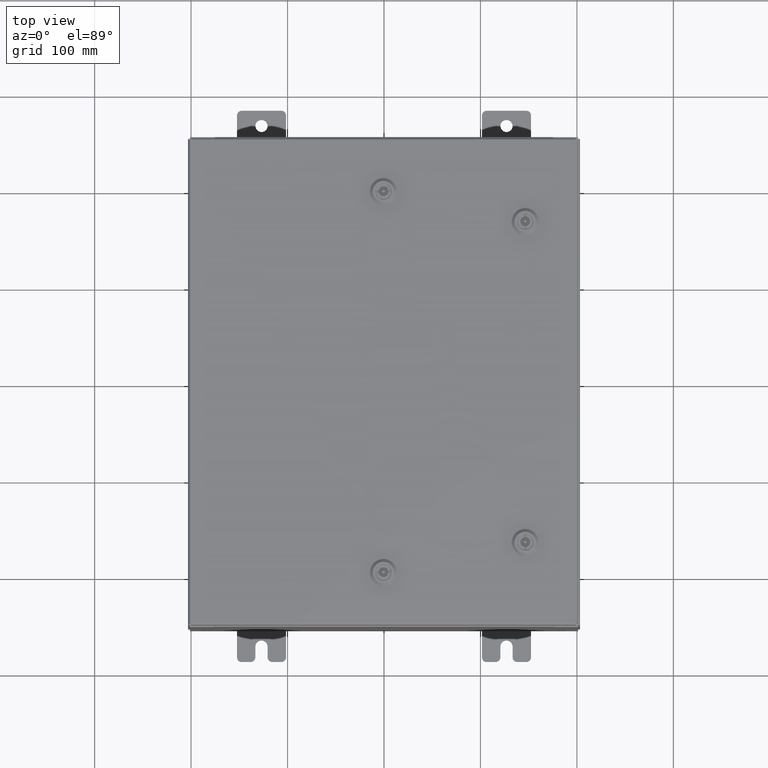
[diagram: clean part render]
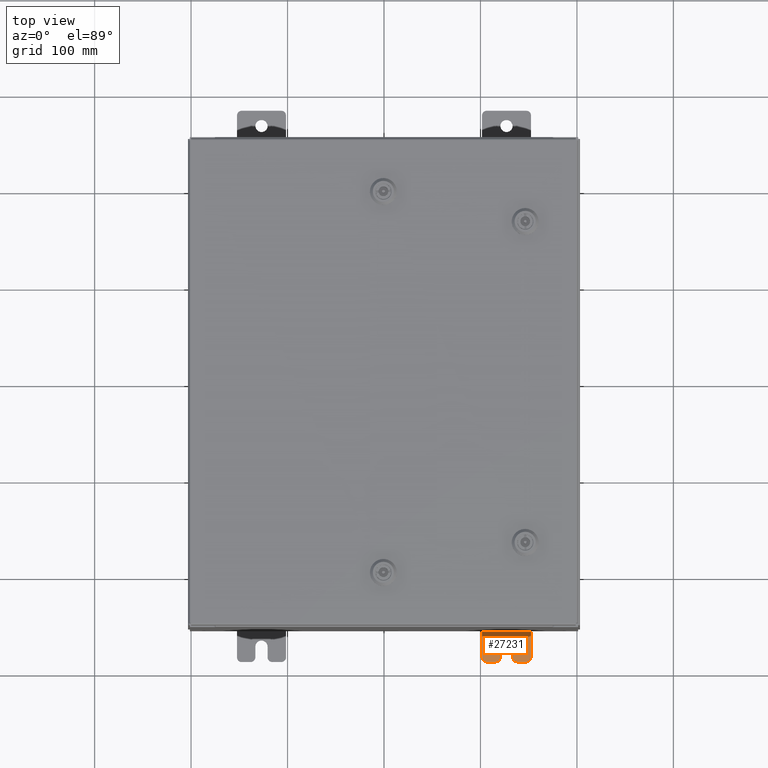
[diagram: same view with one face highlighted and labeled with its STEP entity id]
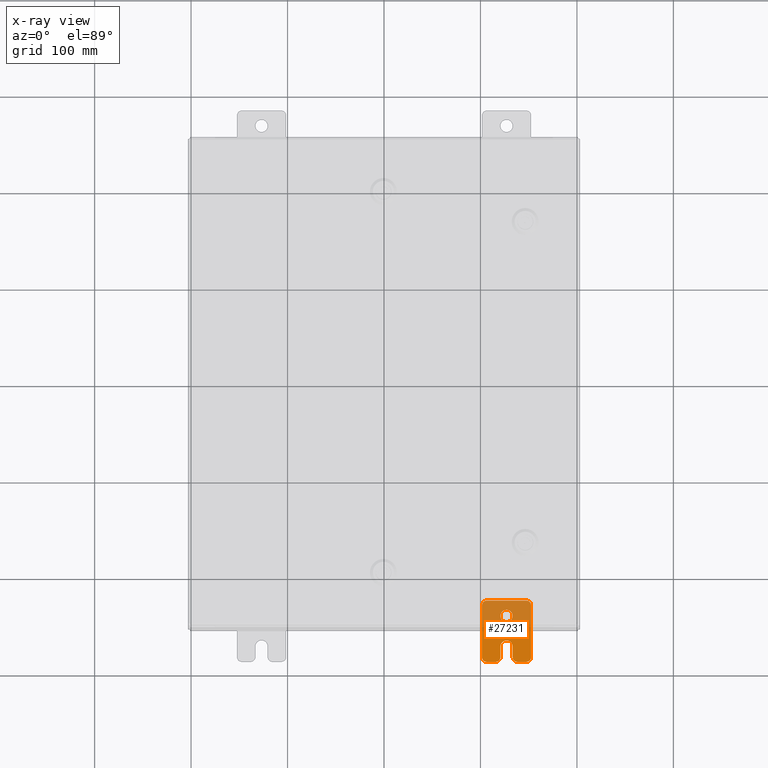
[diagram: x-ray of the same camera — body ghosted, the highlighted face saturated]
A machine part, top view. The second image highlights one B-rep face of the part: STEP entity #27231.
The next image is the same camera in x-ray: the body ghosted, the highlighted face saturated — about 55% of this face is hidden behind the body in this view.
In plain terms, the highlighted planar face has unit normal (0, 0, 1).
Its self-contained STEP definition (entity closure, byte-faithful):
#384 = CARTESIAN_POINT ( 'NONE',  ( 0.0000000000000000000, -1.060000000000001200, 0.9999999999999988900 ) ) ;
#625 = CARTESIAN_POINT ( 'NONE',  ( 0.0000000000000000000, 0.0000000000000000000, 0.0000000000000000000 ) ) ;
#1126 = ORIENTED_EDGE ( 'NONE', *, *, #8228, .T. ) ;
#1266 = AXIS2_PLACEMENT_3D ( 'NONE', #35022, #5863, #39922 ) ;
#2201 = CIRCLE ( 'NONE', #33705, 0.1900000000000011100 ) ;
#2255 = VERTEX_POINT ( 'NONE', #384 ) ;
#2402 = LINE ( 'NONE', #54429, #15344 ) ;
#2616 = DIRECTION ( 'NONE',  ( -6.556435184794182400E-016, -1.000000000000000000, -1.639108796198545600E-016 ) ) ;
#2777 = AXIS2_PLACEMENT_3D ( 'NONE', #19069, #53157, #23963 ) ;
#3264 = DIRECTION ( 'NONE',  ( 0.0000000000000000000, -1.000000000000000000, 1.639108796198558100E-015 ) ) ;
#3372 = FACE_BOUND ( 'NONE', #20690, .T. ) ;
#4446 = CARTESIAN_POINT ( 'NONE',  ( 0.0000000000000000000, 1.059999999999993600, -0.8100000000000089400 ) ) ;
#4700 = CARTESIAN_POINT ( 'NONE',  ( 0.0000000000000000000, 1.059999999999996300, 0.8099999999999938400 ) ) ;
#5696 = EDGE_CURVE ( 'NONE', #16173, #55288, #40114, .T. ) ;
#5863 = DIRECTION ( 'NONE',  ( 1.000000000000000000, -0.0000000000000000000, -5.163192708025532000E-017 ) ) ;
#7045 = AXIS2_PLACEMENT_3D ( 'NONE', #54273, #25069, #59162 ) ;
#7754 = LINE ( 'NONE', #56709, #20694 ) ;
#7778 = CIRCLE ( 'NONE', #7045, 0.2499999999999999200 ) ;
#8008 = EDGE_CURVE ( 'NONE', #8135, #50657, #26803, .T. ) ;
#8135 = VERTEX_POINT ( 'NONE', #39093 ) ;
#8228 = EDGE_CURVE ( 'NONE', #53855, #35488, #43566, .T. ) ;
#8330 = VECTOR ( 'NONE', #57812, 39.37007874015748100 ) ;
#8520 = DIRECTION ( 'NONE',  ( 0.0000000000000000000, 1.000000000000000000, -1.639108796198558100E-015 ) ) ;
#9340 = DIRECTION ( 'NONE',  ( 0.0000000000000000000, 0.0000000000000000000, -1.000000000000000000 ) ) ;
#9591 = DIRECTION ( 'NONE',  ( 0.0000000000000000000, 0.0000000000000000000, -1.000000000000000000 ) ) ;
#10343 = ORIENTED_EDGE ( 'NONE', *, *, #13503, .T. ) ;
#10406 = DIRECTION ( 'NONE',  ( -0.0000000000000000000, 0.0000000000000000000, -1.000000000000000000 ) ) ;
#10556 = CARTESIAN_POINT ( 'NONE',  ( 0.0000000000000000000, -1.250000000000002200, 0.9999999999999992200 ) ) ;
#10610 = VERTEX_POINT ( 'NONE', #14038 ) ;
#11246 = LINE ( 'NONE', #12646, #22640 ) ;
#11921 = DIRECTION ( 'NONE',  ( 1.000000000000000000, 0.0000000000000000000, -0.0000000000000000000 ) ) ;
#12390 = CARTESIAN_POINT ( 'NONE',  ( 0.0000000000000000000, -1.060000000000001600, 0.8099999999999978300 ) ) ;
#12509 = CARTESIAN_POINT ( 'NONE',  ( 4.780733988912460100E-016, -0.6249999999999993300, -0.2499999999999998600 ) ) ;
#12646 = CARTESIAN_POINT ( 'NONE',  ( 0.0000000000000000000, -1.250000000000002200, 0.9999999999999992200 ) ) ;
#13503 = EDGE_CURVE ( 'NONE', #23700, #16769, #11246, .T. ) ;
#13788 = ORIENTED_EDGE ( 'NONE', *, *, #37301, .T. ) ;
#14038 = CARTESIAN_POINT ( 'NONE',  ( 0.0000000000000000000, 1.249999999999997300, 0.8099999999999935000 ) ) ;
#15344 = VECTOR ( 'NONE', #30127, 39.37007874015748100 ) ;
#15621 = ORIENTED_EDGE ( 'NONE', *, *, #53596, .T. ) ;
#16173 = VERTEX_POINT ( 'NONE', #34541 ) ;
#16314 = FACE_OUTER_BOUND ( 'NONE', #52577, .T. ) ;
#16657 = CARTESIAN_POINT ( 'NONE',  ( 0.0000000000000000000, 1.059999999999993400, -1.000000000000010000 ) ) ;
#16769 = VERTEX_POINT ( 'NONE', #52505 ) ;
#17049 = CIRCLE ( 'NONE', #1266, 0.2499999999999999200 ) ;
#17269 = DIRECTION ( 'NONE',  ( 0.0000000000000000000, 0.0000000000000000000, -1.000000000000000000 ) ) ;
#17852 = EDGE_CURVE ( 'NONE', #41302, #25340, #24011, .T. ) ;
#18497 = CARTESIAN_POINT ( 'NONE',  ( 0.0000000000000000000, -1.060000000000002100, 0.4400000000000016700 ) ) ;
#18629 = VERTEX_POINT ( 'NONE', #45809 ) ;
#19069 = CARTESIAN_POINT ( 'NONE',  ( 4.039428427013647300E-016, 0.6249999999999992200, -9.783840404509077400E-018 ) ) ;
#19749 = CIRCLE ( 'NONE', #24849, 0.1900000000000011100 ) ;
#20320 = DIRECTION ( 'NONE',  ( 0.0000000000000000000, -1.639108796198553600E-015, -1.000000000000000000 ) ) ;
#20513 = EDGE_CURVE ( 'NONE', #10610, #56642, #42655, .T. ) ;
#20688 = CARTESIAN_POINT ( 'NONE',  ( 0.0000000000000000000, -1.250000000000004700, -0.4400000000000002200 ) ) ;
#20690 = EDGE_LOOP ( 'NONE', ( #26468, #44514 ) ) ;
#20694 = VECTOR ( 'NONE', #3264, 39.37007874015748100 ) ;
#20695 = CARTESIAN_POINT ( 'NONE',  ( 0.0000000000000000000, -1.250000000000005300, -0.8100000000000047200 ) ) ;
#22017 = DIRECTION ( 'NONE',  ( 0.0000000000000000000, -1.639108796198553600E-015, -1.000000000000000000 ) ) ;
#22640 = VECTOR ( 'NONE', #22017, 39.37007874015748100 ) ;
#22965 = AXIS2_PLACEMENT_3D ( 'NONE', #18497, #52584, #23389 ) ;
#23389 = DIRECTION ( 'NONE',  ( 0.0000000000000000000, 0.0000000000000000000, -1.000000000000000000 ) ) ;
#23700 = VERTEX_POINT ( 'NONE', #52978 ) ;
#23963 = DIRECTION ( 'NONE',  ( -5.163192708025533800E-017, 0.0000000000000000000, -1.000000000000000000 ) ) ;
#24011 = LINE ( 'NONE', #41599, #35429 ) ;
#24130 = DIRECTION ( 'NONE',  ( 1.000000000000000000, 0.0000000000000000000, -0.0000000000000000000 ) ) ;
#24849 = AXIS2_PLACEMENT_3D ( 'NONE', #53341, #24130, #58243 ) ;
#25069 = DIRECTION ( 'NONE',  ( -1.000000000000000000, 6.523827964459549700E-016, 5.163192708025532000E-017 ) ) ;
#25340 = VERTEX_POINT ( 'NONE', #26302 ) ;
#26063 = AXIS2_PLACEMENT_3D ( 'NONE', #12390, #46482, #17269 ) ;
#26302 = CARTESIAN_POINT ( 'NONE',  ( 1.928684683526964400E-016, -1.060000000000003400, -0.2499999999999994400 ) ) ;
#26468 = ORIENTED_EDGE ( 'NONE', *, *, #27718, .F. ) ;
#26803 = CIRCLE ( 'NONE', #2777, 0.2499999999999999200 ) ;
#26839 = AXIS2_PLACEMENT_3D ( 'NONE', #4700, #38760, #9591 ) ;
#27040 = ORIENTED_EDGE ( 'NONE', *, *, #53603, .T. ) ;
#27231 = ADVANCED_FACE ( 'NONE', ( #3372, #16314 ), #39563, .T. ) ;
#27456 = ORIENTED_EDGE ( 'NONE', *, *, #28497, .T. ) ;
#27718 = EDGE_CURVE ( 'NONE', #50657, #8135, #17049, .T. ) ;
#27842 = ORIENTED_EDGE ( 'NONE', *, *, #17852, .T. ) ;
#28497 = EDGE_CURVE ( 'NONE', #55288, #18629, #39135, .T. ) ;
#28685 = VECTOR ( 'NONE', #8520, 39.37007874015748100 ) ;
#29429 = AXIS2_PLACEMENT_3D ( 'NONE', #4446, #38498, #9340 ) ;
#29519 = CARTESIAN_POINT ( 'NONE',  ( 3.910348609313009100E-016, 0.6249999999999992200, -0.2499999999999999200 ) ) ;
#30127 = DIRECTION ( 'NONE',  ( 0.0000000000000000000, 1.639108796198553600E-015, 1.000000000000000000 ) ) ;
#30197 = EDGE_CURVE ( 'NONE', #30450, #41302, #7778, .T. ) ;
#30450 = VERTEX_POINT ( 'NONE', #57416 ) ;
#30469 = ORIENTED_EDGE ( 'NONE', *, *, #20513, .T. ) ;
#31167 = LINE ( 'NONE', #62915, #8330 ) ;
#33040 = AXIS2_PLACEMENT_3D ( 'NONE', #625, #58967, #10406 ) ;
#33705 = AXIS2_PLACEMENT_3D ( 'NONE', #41110, #11921, #46018 ) ;
#34541 = CARTESIAN_POINT ( 'NONE',  ( 0.0000000000000000000, -1.060000000000004500, -1.000000000000006400 ) ) ;
#34930 = EDGE_CURVE ( 'NONE', #25340, #53855, #2201, .T. ) ;
#35022 = CARTESIAN_POINT ( 'NONE',  ( 4.039428427013647300E-016, 0.6249999999999992200, -9.783840404509077400E-018 ) ) ;
#35429 = VECTOR ( 'NONE', #2616, 39.37007874015748100 ) ;
#35488 = VERTEX_POINT ( 'NONE', #20695 ) ;
#37122 = ORIENTED_EDGE ( 'NONE', *, *, #30197, .T. ) ;
#37279 = CARTESIAN_POINT ( 'NONE',  ( 1.928684683526972300E-016, -1.060000000000002100, 0.2500000000000005000 ) ) ;
#37301 = EDGE_CURVE ( 'NONE', #2255, #23700, #53118, .T. ) ;
#37657 = CARTESIAN_POINT ( 'NONE',  ( 0.0000000000000000000, -1.250000000000005600, -1.000000000000006200 ) ) ;
#38498 = DIRECTION ( 'NONE',  ( 1.000000000000000000, 0.0000000000000000000, -0.0000000000000000000 ) ) ;
#38760 = DIRECTION ( 'NONE',  ( 1.000000000000000000, 0.0000000000000000000, -0.0000000000000000000 ) ) ;
#39093 = CARTESIAN_POINT ( 'NONE',  ( 4.168508244714285900E-016, 0.6249999999999992200, 0.2499999999999999200 ) ) ;
#39135 = CIRCLE ( 'NONE', #29429, 0.1900000000000011100 ) ;
#39563 = PLANE ( 'NONE',  #33040 ) ;
#39886 = CARTESIAN_POINT ( 'NONE',  ( 0.0000000000000000000, 1.059999999999996500, 0.9999999999999953400 ) ) ;
#39922 = DIRECTION ( 'NONE',  ( -5.163192708025533800E-017, 0.0000000000000000000, -1.000000000000000000 ) ) ;
#40114 = LINE ( 'NONE', #37657, #28685 ) ;
#41110 = CARTESIAN_POINT ( 'NONE',  ( 0.0000000000000000000, -1.060000000000003400, -0.4400000000000005000 ) ) ;
#41302 = VERTEX_POINT ( 'NONE', #12509 ) ;
#41599 = CARTESIAN_POINT ( 'NONE',  ( 4.780733988912460100E-016, -0.6249999999999993300, -0.2499999999999993900 ) ) ;
#41752 = VERTEX_POINT ( 'NONE', #37279 ) ;
#42031 = VECTOR ( 'NONE', #20320, 39.37007874015748100 ) ;
#42655 = CIRCLE ( 'NONE', #26839, 0.1900000000000011100 ) ;
#43566 = LINE ( 'NONE', #10556, #42031 ) ;
#44514 = ORIENTED_EDGE ( 'NONE', *, *, #8008, .F. ) ;
#45664 = EDGE_CURVE ( 'NONE', #16769, #41752, #54120, .T. ) ;
#45809 = CARTESIAN_POINT ( 'NONE',  ( 0.0000000000000000000, 1.249999999999994700, -0.8100000000000092700 ) ) ;
#46018 = DIRECTION ( 'NONE',  ( 0.0000000000000000000, 0.0000000000000000000, -1.000000000000000000 ) ) ;
#46482 = DIRECTION ( 'NONE',  ( 1.000000000000000000, 0.0000000000000000000, -0.0000000000000000000 ) ) ;
#48008 = ORIENTED_EDGE ( 'NONE', *, *, #34930, .T. ) ;
#48343 = EDGE_CURVE ( 'NONE', #56642, #2255, #7754, .T. ) ;
#50336 = ORIENTED_EDGE ( 'NONE', *, *, #5696, .T. ) ;
#50657 = VERTEX_POINT ( 'NONE', #29519 ) ;
#52505 = CARTESIAN_POINT ( 'NONE',  ( 0.0000000000000000000, -1.250000000000003100, 0.4400000000000020000 ) ) ;
#52577 = EDGE_LOOP ( 'NONE', ( #56767, #13788, #10343, #58415, #15621, #37122, #27842, #48008, #1126, #27040, #50336, #27456, #56222, #30469 ) ) ;
#52584 = DIRECTION ( 'NONE',  ( 1.000000000000000000, 0.0000000000000000000, -0.0000000000000000000 ) ) ;
#52978 = CARTESIAN_POINT ( 'NONE',  ( 0.0000000000000000000, -1.250000000000002400, 0.8099999999999980500 ) ) ;
#53118 = CIRCLE ( 'NONE', #26063, 0.1900000000000011100 ) ;
#53157 = DIRECTION ( 'NONE',  ( 1.000000000000000000, -0.0000000000000000000, -5.163192708025532000E-017 ) ) ;
#53341 = CARTESIAN_POINT ( 'NONE',  ( 0.0000000000000000000, -1.060000000000004100, -0.8100000000000050500 ) ) ;
#53596 = EDGE_CURVE ( 'NONE', #41752, #30450, #31167, .T. ) ;
#53603 = EDGE_CURVE ( 'NONE', #35488, #16173, #19749, .T. ) ;
#53855 = VERTEX_POINT ( 'NONE', #20688 ) ;
#54120 = CIRCLE ( 'NONE', #22965, 0.1900000000000011400 ) ;
#54273 = CARTESIAN_POINT ( 'NONE',  ( 4.780733988912460100E-016, -0.6249999999999993300, 5.858939755051854500E-017 ) ) ;
#54429 = CARTESIAN_POINT ( 'NONE',  ( 0.0000000000000000000, 1.249999999999994200, -1.000000000000010400 ) ) ;
#55288 = VERTEX_POINT ( 'NONE', #16657 ) ;
#56222 = ORIENTED_EDGE ( 'NONE', *, *, #62441, .T. ) ;
#56642 = VERTEX_POINT ( 'NONE', #39886 ) ;
#56709 = CARTESIAN_POINT ( 'NONE',  ( 0.0000000000000000000, 1.249999999999997600, 0.9999999999999951200 ) ) ;
#56767 = ORIENTED_EDGE ( 'NONE', *, *, #48343, .T. ) ;
#57416 = CARTESIAN_POINT ( 'NONE',  ( 0.0000000000000000000, -0.6249999999999992200, 0.2500000000000005000 ) ) ;
#57812 = DIRECTION ( 'NONE',  ( 6.556435184794182400E-016, 1.000000000000000000, 0.0000000000000000000 ) ) ;
#58243 = DIRECTION ( 'NONE',  ( 0.0000000000000000000, 0.0000000000000000000, -1.000000000000000000 ) ) ;
#58415 = ORIENTED_EDGE ( 'NONE', *, *, #45664, .T. ) ;
#58967 = DIRECTION ( 'NONE',  ( 1.000000000000000000, 0.0000000000000000000, -0.0000000000000000000 ) ) ;
#59162 = DIRECTION ( 'NONE',  ( -6.523827964459551700E-016, -1.000000000000000000, 0.0000000000000000000 ) ) ;
#62441 = EDGE_CURVE ( 'NONE', #18629, #10610, #2402, .T. ) ;
#62915 = CARTESIAN_POINT ( 'NONE',  ( 6.829619984160658000E-017, -1.250000000000003800, 0.2500000000000005000 ) ) ;